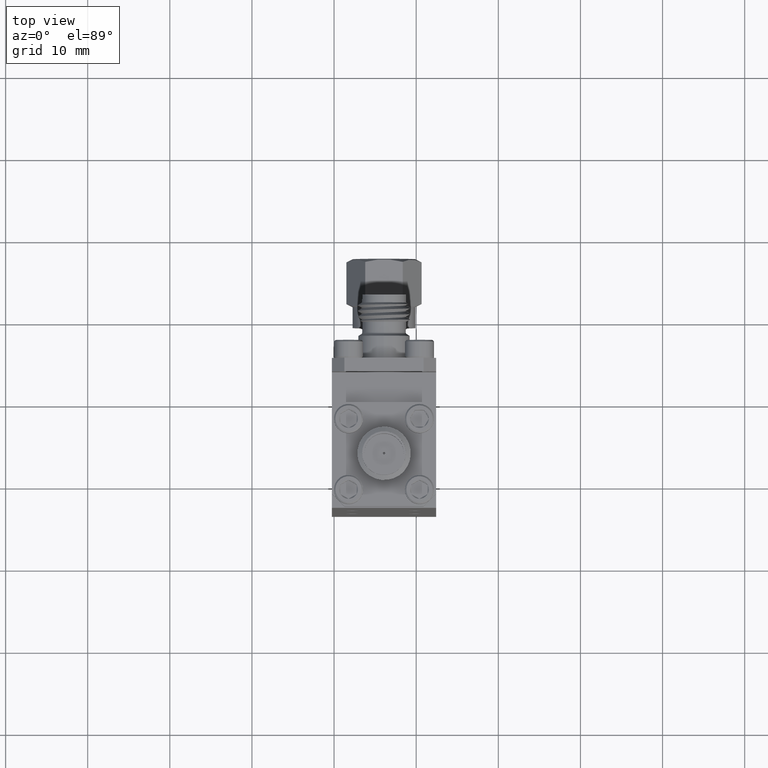
[diagram: clean part render]
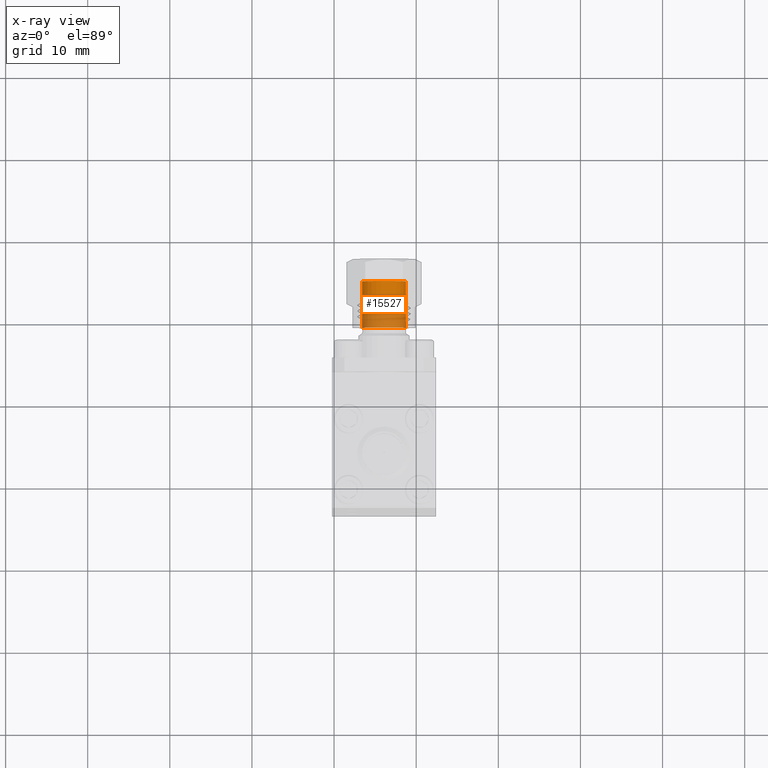
[diagram: x-ray — body ghosted, one internal face saturated and labeled with its STEP entity id]
A machine part, top view, then the same camera in x-ray: the body is ghosted and one INTERNAL B-rep face — a face not visible from any outside direction — is saturated and labeled: STEP entity #15527.
In plain terms, the highlighted cylindrical surface (edge-blend (fillet) strip) has radius 2.667 mm, axis along (-0, -1, -0).
Its self-contained STEP definition (entity closure, byte-faithful):
#256 = DIRECTION ( 'NONE',  ( -1.000000000000000000, 0.0000000000000000000, 0.0000000000000000000 ) ) ;
#258 = CARTESIAN_POINT ( 'NONE',  ( -1.230499139784813700, 1.153792468998555000, -0.6978189816778638300 ) ) ;
#628 = CARTESIAN_POINT ( 'NONE',  ( -1.335499139784813700, 1.153792468998555000, -0.6978189816778638300 ) ) ;
#968 = VECTOR ( 'NONE', #19668, 39.37007874015748100 ) ;
#989 = DIRECTION ( 'NONE',  ( -2.200159989352222500E-017, -1.000000000000000000, -4.425604907990815700E-017 ) ) ;
#1625 = CARTESIAN_POINT ( 'NONE',  ( -1.335499139784813700, 1.377792468998555000, -0.6978189816778638300 ) ) ;
#2024 = CARTESIAN_POINT ( 'NONE',  ( -1.230499139784813700, 1.377792468998555000, -0.6978189816778638300 ) ) ;
#2028 = CARTESIAN_POINT ( 'NONE',  ( -1.335499139784813700, 1.277792468998554900, -0.6978189816778638300 ) ) ;
#2657 = CARTESIAN_POINT ( 'NONE',  ( -1.440499139784813900, 1.377792468998555000, -0.6978189816778638300 ) ) ;
#3017 = EDGE_CURVE ( 'NONE', #14280, #21329, #20317, .T. ) ;
#3066 = VERTEX_POINT ( 'NONE', #4312 ) ;
#3878 = ORIENTED_EDGE ( 'NONE', *, *, #4562, .F. ) ;
#4312 = CARTESIAN_POINT ( 'NONE',  ( -1.440499139784813900, 1.153792468998555000, -0.6978189816778638300 ) ) ;
#4562 = EDGE_CURVE ( 'NONE', #11156, #3066, #22125, .T. ) ;
#4804 = EDGE_CURVE ( 'NONE', #21329, #3066, #18099, .T. ) ;
#5165 = DIRECTION ( 'NONE',  ( 1.000000000000000000, 0.0000000000000000000, 0.0000000000000000000 ) ) ;
#6991 = AXIS2_PLACEMENT_3D ( 'NONE', #2028, #15765, #256 ) ;
#7842 = CARTESIAN_POINT ( 'NONE',  ( -1.440499139784813900, 1.277792468998554900, -0.6978189816778638300 ) ) ;
#8986 = ORIENTED_EDGE ( 'NONE', *, *, #4804, .T. ) ;
#9247 = VECTOR ( 'NONE', #989, 39.37007874015748100 ) ;
#11156 = VERTEX_POINT ( 'NONE', #2657 ) ;
#11749 = AXIS2_PLACEMENT_3D ( 'NONE', #1625, #15423, #5165 ) ;
#13327 = CYLINDRICAL_SURFACE ( 'NONE', #6991, 0.1050000000000001100 ) ;
#14280 = VERTEX_POINT ( 'NONE', #2024 ) ;
#14567 = DIRECTION ( 'NONE',  ( -2.200159989352222500E-017, -1.000000000000000000, -4.425604907990815700E-017 ) ) ;
#15177 = ORIENTED_EDGE ( 'NONE', *, *, #3017, .T. ) ;
#15423 = DIRECTION ( 'NONE',  ( -2.200159989352222500E-017, -1.000000000000000000, -4.425604907990815700E-017 ) ) ;
#15527 = ADVANCED_FACE ( 'NONE', ( #19790 ), #13327, .F. ) ;
#15765 = DIRECTION ( 'NONE',  ( -2.200159989352222500E-017, -1.000000000000000000, -4.425604907990815700E-017 ) ) ;
#16870 = EDGE_CURVE ( 'NONE', #14280, #11156, #20800, .T. ) ;
#17740 = DIRECTION ( 'NONE',  ( 1.000000000000000000, 0.0000000000000000000, 0.0000000000000000000 ) ) ;
#17848 = ORIENTED_EDGE ( 'NONE', *, *, #16870, .F. ) ;
#17941 = CARTESIAN_POINT ( 'NONE',  ( -1.230499139784813700, 1.277792468998554900, -0.6978189816778638300 ) ) ;
#18099 = CIRCLE ( 'NONE', #18848, 0.1050000000000001100 ) ;
#18848 = AXIS2_PLACEMENT_3D ( 'NONE', #628, #14567, #17740 ) ;
#19022 = EDGE_LOOP ( 'NONE', ( #17848, #15177, #8986, #3878 ) ) ;
#19668 = DIRECTION ( 'NONE',  ( -2.200159989352222500E-017, -1.000000000000000000, -4.425604907990815700E-017 ) ) ;
#19790 = FACE_OUTER_BOUND ( 'NONE', #19022, .T. ) ;
#20317 = LINE ( 'NONE', #17941, #968 ) ;
#20800 = CIRCLE ( 'NONE', #11749, 0.1050000000000001100 ) ;
#21329 = VERTEX_POINT ( 'NONE', #258 ) ;
#22125 = LINE ( 'NONE', #7842, #9247 ) ;